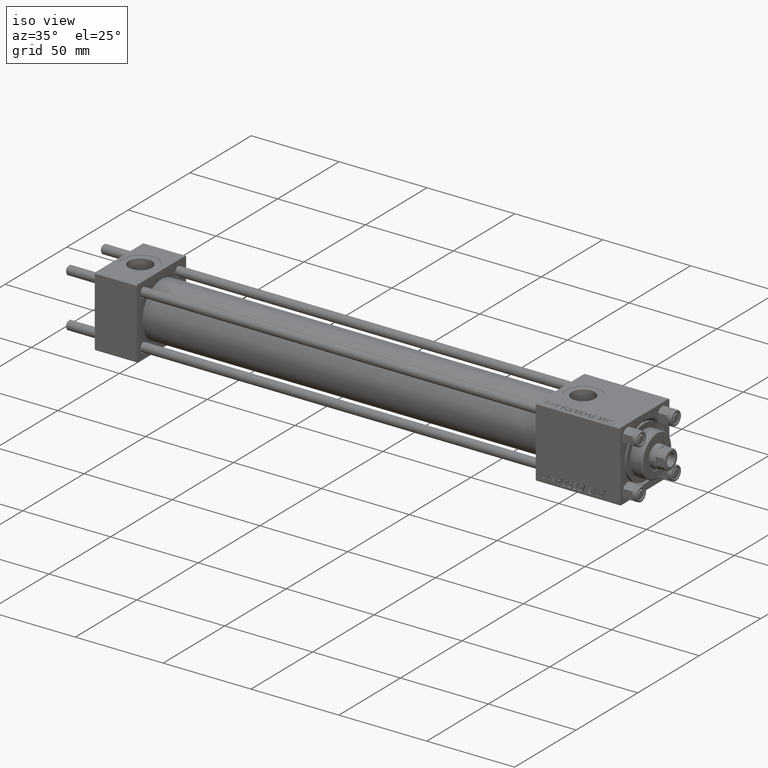
[diagram: clean part render]
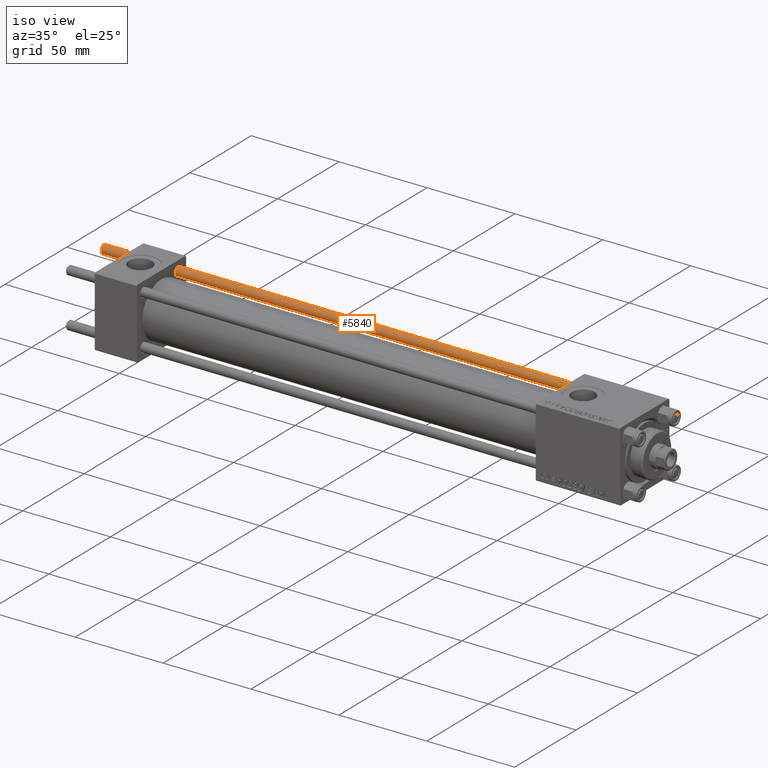
[diagram: same view with one face highlighted and labeled with its STEP entity id]
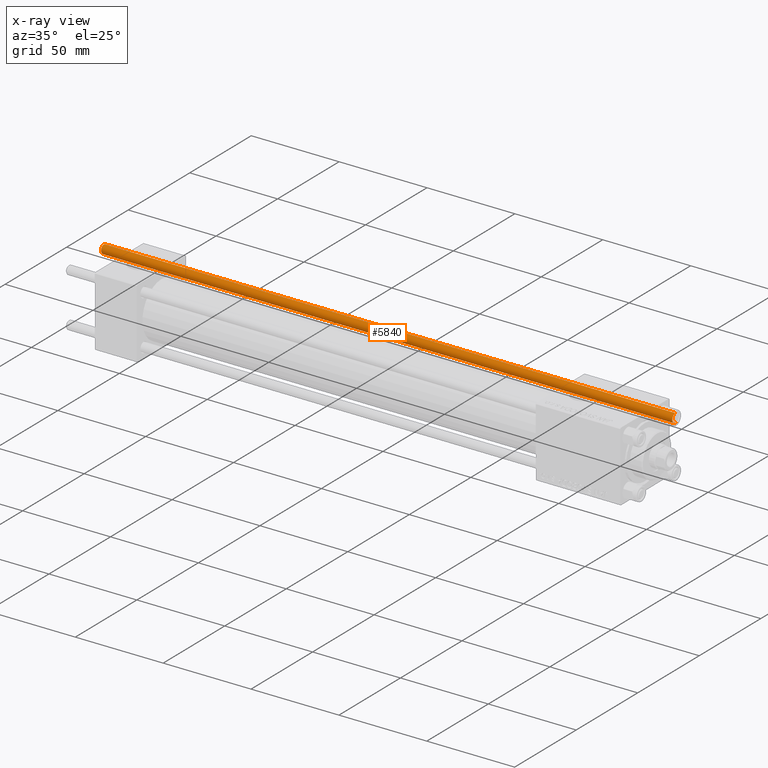
[diagram: x-ray of the same camera — body ghosted, the highlighted face saturated]
A machine part, iso view. The second image highlights one B-rep face of the part: STEP entity #5840.
The next image is the same camera in x-ray: the body ghosted, the highlighted face saturated — about 0% of this face is hidden behind the body in this view.
In plain terms, the highlighted cylindrical surface (edge-blend (fillet) strip) has radius 2.5 mm, axis along (-1, -0, -0).
Its self-contained STEP definition (entity closure, byte-faithful):
#191 = DIRECTION ( 'NONE',  ( 1.000000000000000000, 0.000000000000000000, 0.000000000000000000 ) ) ;
#1852 = EDGE_CURVE ( 'NONE', #48198, #29187, #5097, .T. ) ;
#3166 = DIRECTION ( 'NONE',  ( -1.000000000000000000, 0.000000000000000000, 0.000000000000000000 ) ) ;
#5097 = LINE ( 'NONE', #37940, #44083 ) ;
#5625 = DIRECTION ( 'NONE',  ( -0.000000000000000000, -0.000000000000000000, -1.000000000000000000 ) ) ;
#5840 = ADVANCED_FACE ( 'NONE', ( #11450 ), #30706, .T. ) ;
#6183 = AXIS2_PLACEMENT_3D ( 'NONE', #9264, #21011, #191 ) ;
#6379 = LINE ( 'NONE', #34965, #42018 ) ;
#9107 = CARTESIAN_POINT ( 'NONE',  ( 2.500000000000000000, 3.061616997868383141E-16, 325.5000000000000000 ) ) ;
#9264 = CARTESIAN_POINT ( 'NONE',  ( 0.000000000000000000, 0.000000000000000000, 0.4999999999999449329 ) ) ;
#11450 = FACE_OUTER_BOUND ( 'NONE', #41024, .T. ) ;
#13698 = CARTESIAN_POINT ( 'NONE',  ( 0.000000000000000000, 0.000000000000000000, 325.5000000000000000 ) ) ;
#15638 = CIRCLE ( 'NONE', #30177, 2.500000000000000000 ) ;
#19733 = CARTESIAN_POINT ( 'NONE',  ( -2.500000000000000000, 0.000000000000000000, 0.4999999999999449329 ) ) ;
#21011 = DIRECTION ( 'NONE',  ( -0.000000000000000000, -0.000000000000000000, 1.000000000000000000 ) ) ;
#22944 = DIRECTION ( 'NONE',  ( -0.000000000000000000, -0.000000000000000000, -1.000000000000000000 ) ) ;
#23891 = CARTESIAN_POINT ( 'NONE',  ( 2.500000000000000000, 3.061616997868383141E-16, 0.4999999999999449329 ) ) ;
#25999 = DIRECTION ( 'NONE',  ( 1.000000000000000000, 0.000000000000000000, 0.000000000000000000 ) ) ;
#26744 = ORIENTED_EDGE ( 'NONE', *, *, #31167, .T. ) ;
#28194 = CARTESIAN_POINT ( 'NONE',  ( -2.500000000000000000, 0.000000000000000000, 325.5000000000000000 ) ) ;
#29187 = VERTEX_POINT ( 'NONE', #19733 ) ;
#29202 = CIRCLE ( 'NONE', #6183, 2.500000000000000000 ) ;
#30177 = AXIS2_PLACEMENT_3D ( 'NONE', #13698, #34790, #25999 ) ;
#30616 = AXIS2_PLACEMENT_3D ( 'NONE', #51792, #51528, #3166 ) ;
#30638 = VERTEX_POINT ( 'NONE', #23891 ) ;
#30706 = CYLINDRICAL_SURFACE ( 'NONE', #30616, 2.500000000000000000 ) ;
#31060 = EDGE_CURVE ( 'NONE', #45182, #30638, #6379, .T. ) ;
#31167 = EDGE_CURVE ( 'NONE', #29187, #30638, #29202, .T. ) ;
#34790 = DIRECTION ( 'NONE',  ( 0.000000000000000000, 0.000000000000000000, -1.000000000000000000 ) ) ;
#34965 = CARTESIAN_POINT ( 'NONE',  ( 2.500000000000000000, 3.061616997868383141E-16, 326.0000000000000000 ) ) ;
#37940 = CARTESIAN_POINT ( 'NONE',  ( -2.500000000000000000, 0.000000000000000000, 326.0000000000000000 ) ) ;
#41024 = EDGE_LOOP ( 'NONE', ( #44330, #42043, #45664, #26744 ) ) ;
#42018 = VECTOR ( 'NONE', #22944, 1000.000000000000000 ) ;
#42043 = ORIENTED_EDGE ( 'NONE', *, *, #49701, .T. ) ;
#44083 = VECTOR ( 'NONE', #5625, 1000.000000000000000 ) ;
#44330 = ORIENTED_EDGE ( 'NONE', *, *, #31060, .F. ) ;
#45182 = VERTEX_POINT ( 'NONE', #9107 ) ;
#45664 = ORIENTED_EDGE ( 'NONE', *, *, #1852, .T. ) ;
#48198 = VERTEX_POINT ( 'NONE', #28194 ) ;
#49701 = EDGE_CURVE ( 'NONE', #45182, #48198, #15638, .T. ) ;
#51528 = DIRECTION ( 'NONE',  ( -0.000000000000000000, -0.000000000000000000, -1.000000000000000000 ) ) ;
#51792 = CARTESIAN_POINT ( 'NONE',  ( 0.000000000000000000, 0.000000000000000000, 326.0000000000000000 ) ) ;